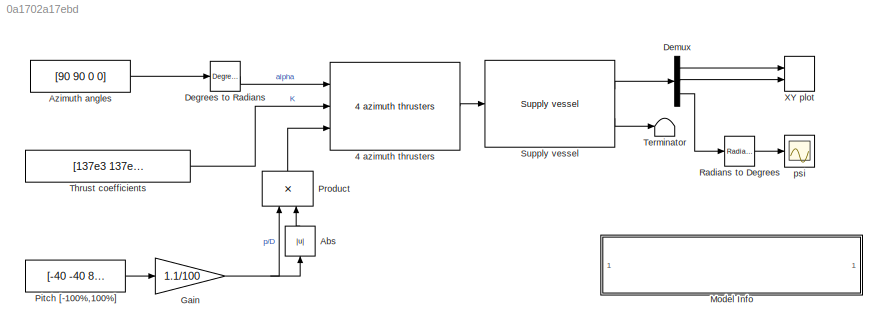
MODEL slx_0a1702a17ebd
KIND model
CONFIG AbsTol = auto
CONFIG EnableMultiTasking = on
CONFIG FixedStep = auto
CONFIG MaxStep = auto
CONFIG MinStep = auto
CONFIG RelTol = 1e-3
CONFIG SampleTimeConstraint = Unconstrained
CONFIG SolverName = ode45
CONFIG StartTime = 0.0
CONFIG StopTime = 200
BLOCK [Reference] 4 azimuth thrusters   REF=mssSimulink/Modelling/Propulsion/Actuator Configuration/4 azimuth thrusters
  Ports = [3, 1]
  SourceBlock = mssSimulink/Modelling/Propulsion/Actuator Configuration/4 azimuth thrusters
BLOCK [Abs] Abs
  NameLocation = right
BLOCK [Constant] Azimuth angles
  Value = [90 90 0 0]
BLOCK [Reference] Degrees to Radians  REF=simulink_extras/Transformations/Degrees to
Radians
  Ports = [1, 1]
  SourceBlock = simulink_extras/Transformations/Degrees to\nRadians
  SourceProductBaseCode = SL
  SourceType = DegreesToRadians
BLOCK [Demux] Demux
  DisplayOption = none
  Outputs = 3
  Ports = [1, 3]
BLOCK [Gain] Gain
  Gain = 1.1/100
  OutDataTypeStr = Inherit: Same as input
  ParamDataTypeStr = Inherit: Same as input
  SaturateOnIntegerOverflow = on
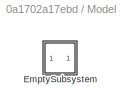
BLOCK [SubSystem] Model Info
  CopyFcn = slcm CopyBlock;
  DeleteFcn = slcm Cancel;
  InitFcn = slcm('UpdateAllCMBlocksInThisModelInit')
  LoadFcn = slcm LoadBlock;
  NameChangeFcn = slcm Rename;
  OpenFcn = slcm
  Ports = []
  PostSaveFcn = slcm('UpdateAllCMBlocksInThisModel')
  RequestExecContextInheritance = off
BLOCK [SubSystem] Model Info/EmptySubsystem
  Ports = []
  RequestExecContextInheritance = off
BLOCK [Constant] Pitch [-100%,100%]
  Value = [-40 -40  80 80]
BLOCK [Product] Product
  NameLocation = right
  OutDataTypeStr = Inherit: Same as first input
  Ports = [2, 1]
  SaturateOnIntegerOverflow = on
BLOCK [Reference] Radians to Degrees  REF=simulink_extras/Transformations/Radians
to Degrees
  Ports = [1, 1]
  SourceBlock = simulink_extras/Transformations/Radians\nto Degrees
  SourceProductBaseCode = SL
  SourceType = RadiansToDegrees
BLOCK [Reference] Supply vessel   REF=mssSimulink/Marine craft models/Supply vessel
  Ports = [1, 2]
  SourceBlock = mssSimulink/Marine craft models/Supply vessel
  SourceType = Supply Vessel (surge, sway and yaw)
BLOCK [Terminator] Terminator
BLOCK [Constant] Thrust coefficients
  Value = [137e3 137e3 137e3 137e3]
BLOCK [Record] XY plot
  CompatibilityTag = XY
  FileSettingsInternal = {"entries":[{"content":{"excelSettings":{"content":{},"type":"Streamout.ExcelSettings"}},"type":"Streamout.FileSettingStorage","uuid":"85dce5c7-4b4a-46ed-89de-f14b6efd32c5"}],"packageUris":["http://schema.mathworks.com/mf0/streamout_blocks/R2020a"],"version":"1.0"}
  Layout = [1 1]
  Ports = [2]
  SignalsInternal = {"entries":[{"content":{"signals":[{"content":{"blockPath":["demoDPThrusterModels/XY plot"],"channel":[],"dimensions":[1],"domain":"demoDPThrusterModels/XY plot","lineColor":"#a2142f","plots":[1],"port":1,"sid":[""],"signalID":721,"signalName":"Demux:1"},"type":"RecordBlkView.Signal","uuid":"12c5ca3e-2f2c-42b5-af1e-aec715ebc375"},{"content":{"blockPath":["demoDPThrusterModels/XY plot"],"channel":[...<+405ch>
  VisualizationBindings = {"xyplotplugin":{"info":[{"series":[{"bindingParametersList":[{"parameter":"X-Axis","signalID":721,"signalName":"Demux:1"},{"parameter":"Y-Axis","signalID":725,"signalName":"Demux:2"}],"seriesID":46517}],"subplotID":1}]}}
  st = -1
BLOCK [Scope] psi
  Floating = off
  NumInputPorts = 1
  Ports = [1]
  ScopeSpecificationString = Simulink.scopes.TimeScopeBlockCfg('CurrentConfiguration', extmgr.ConfigurationSet(extmgr.Configuration('Core','General UI',true),extmgr.Configuration('Core','Source UI',true),extmgr.Configuration('Sources','WiredSimulink',true,'DataLoggingSaveFormat','StructureWithTime','DataLoggingLimitDataPoints',true,'DataLoggingDecimation','1','DataLoggingDecimateData',true),extmgr.Configuration('Visuals','Tim...<+1703ch>
LINE 4 azimuth thrusters :1 -> Supply vessel :1
LINE Abs:1 -> Product:2
LINE Azimuth angles:1 -> Degrees to Radians:1
LINE Degrees to Radians:1 -> 4 azimuth thrusters :1
LINE Demux:1 -> XY plot:1
LINE Demux:2 -> XY plot:2
LINE Demux:3 -> Radians to Degrees:1
NET Gain:1 -> Abs:1, Product:1
LINE Pitch [-100%,100%]:1 -> Gain:1
LINE Product:1 -> 4 azimuth thrusters :3
LINE Radians to Degrees:1 -> psi:1
LINE Supply vessel :1 -> Demux:1
LINE Supply vessel :2 -> Terminator:1
LINE Thrust coefficients:1 -> 4 azimuth thrusters :2
note: NET lines group one-source signal fan-out (src -> all destinations, sorted); 1:1 wires keep LINE
